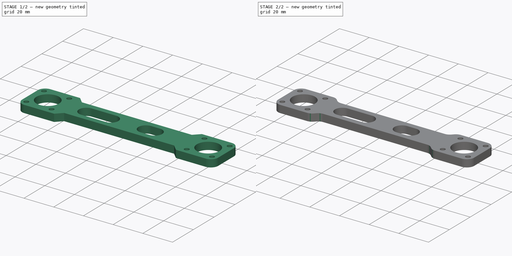
[diagram: build sequence overview — one tinted view per stage of 2, left to right]
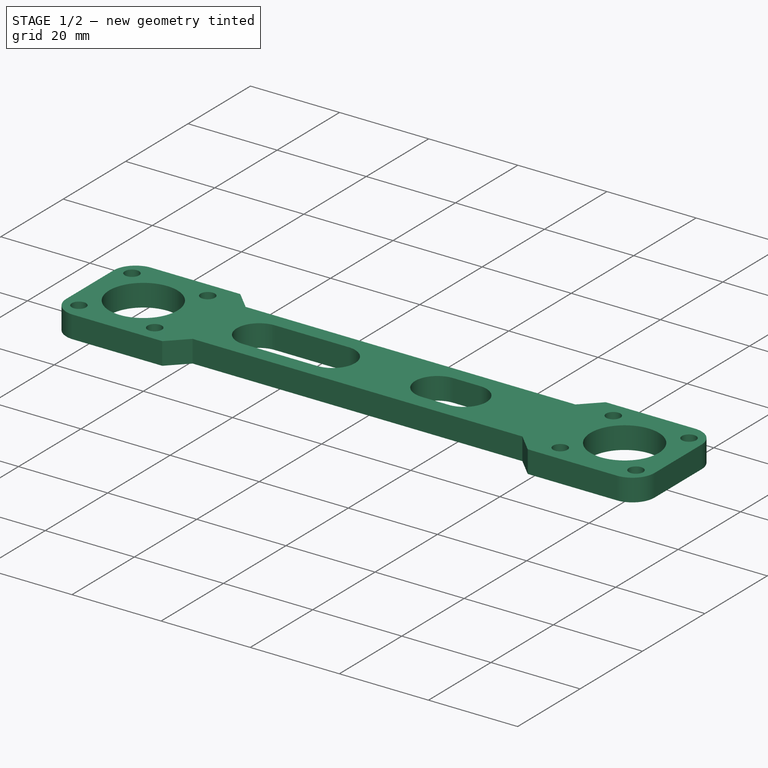
[diagram: stage 1 of 2 — iso view after this stage's code; geometry added in this stage tinted green]
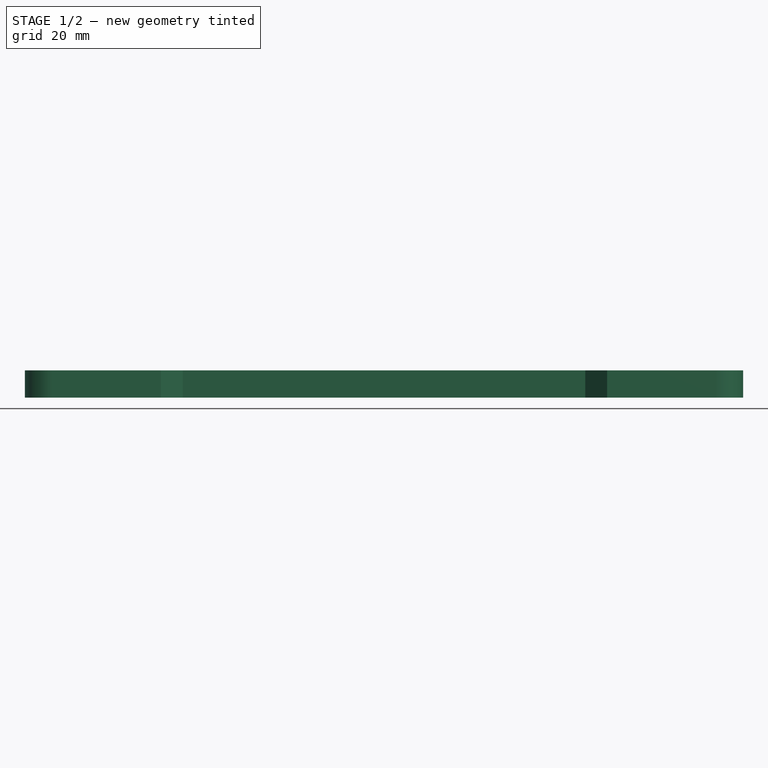
[diagram: stage 1 of 2 — front view after this stage's code; geometry added in this stage tinted green]
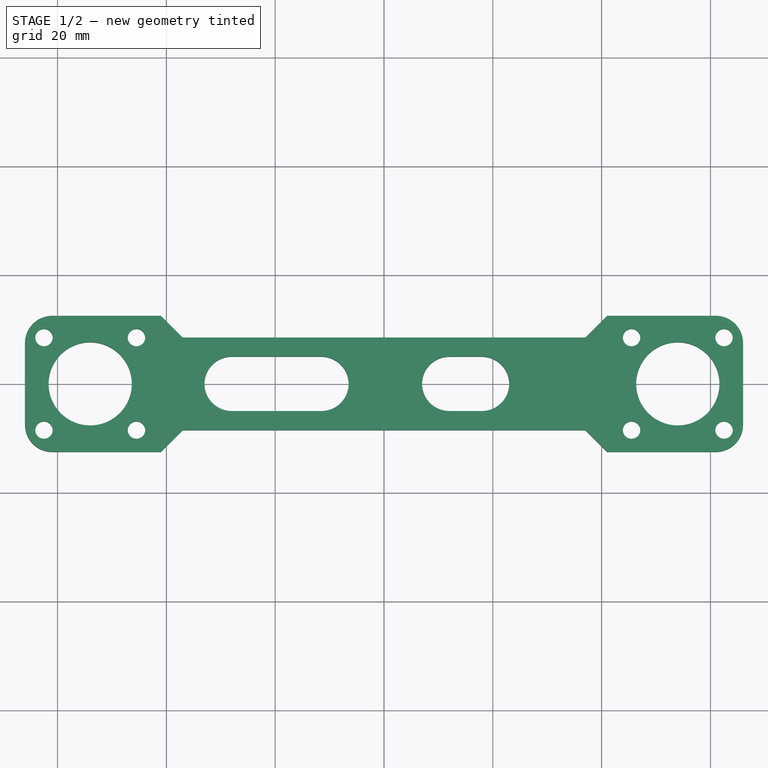
[diagram: stage 1 of 2 — top view after this stage's code; geometry added in this stage tinted green]
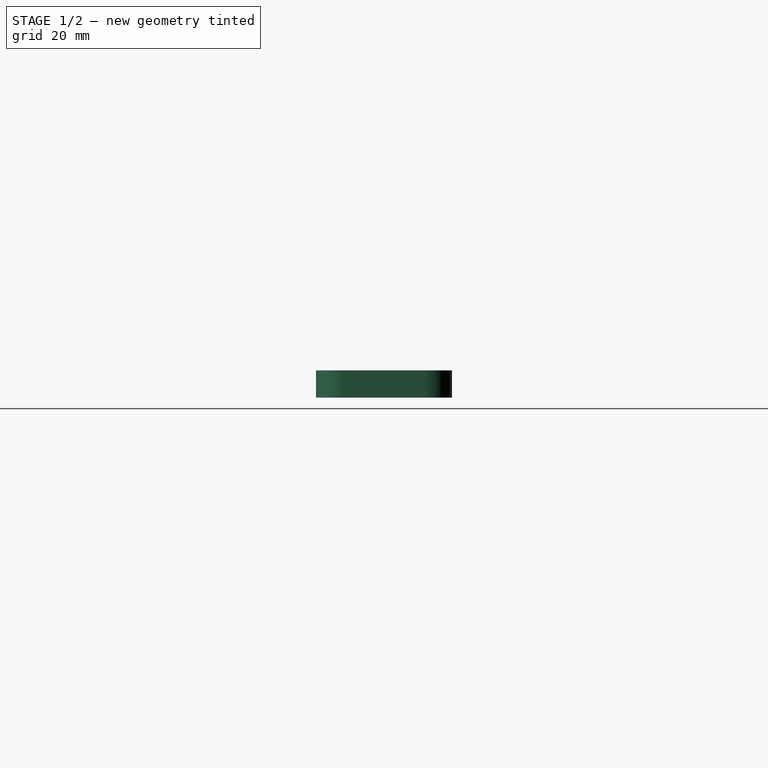
[diagram: stage 1 of 2 — right view after this stage's code; geometry added in this stage tinted green]
FCSTD DOCUMENT  (FreeCAD 0.19R24276 (Git))
Label: Guillotine_part_2_middle
License: All rights reserved
LicenseURL: http://en.wikipedia.org/wiki/All_rights_reserved
objects: PartDesign::Fillet×3, Sketcher::SketchObject×1, PartDesign::Pad×1, PartDesign::Body×1
note: 10 computed .brp shape members not serialized (recipe doc carries the construction recipe); baked Part::Feature solids carry a one-line shape summary decoded from their .brp

FEATURE [Sketcher::SketchObject] Sketch
  FullyConstrained = false
  MapMode = 5
  Support = -> [XY_Plane]
  sketch-geometry (67):
    g0: Circle CenterX=-54 CenterY=0 CenterZ=0 NormalX=0 NormalY=0 NormalZ=1 AngleXU=0 Radius=7.65
    g1: Circle CenterX=54 CenterY=0 CenterZ=0 NormalX=0 NormalY=0 NormalZ=1 AngleXU=0 Radius=7.65
    g2: LineSegment StartX=62.5 StartY=8.5 StartZ=0 EndX=45.5 EndY=8.5 EndZ=0
    g3: LineSegment StartX=45.5 StartY=8.5 StartZ=0 EndX=45.5 EndY=-8.5 EndZ=0
    g4: LineSegment StartX=45.5 StartY=-8.5 StartZ=0 EndX=62.5 EndY=-8.5 EndZ=0
    g5: LineSegment StartX=62.5 StartY=-8.5 StartZ=0 EndX=62.5 EndY=8.5 EndZ=0
    g6: Circle CenterX=54 CenterY=0 CenterZ=0 NormalX=0 NormalY=0 NormalZ=1 AngleXU=0 Radius=12.0208
    g7: Circle CenterX=45.5 CenterY=8.5 CenterZ=0 NormalX=0 NormalY=0 NormalZ=1 AngleXU=0 Radius=1.6
    g8: Circle CenterX=62.5 CenterY=8.5 CenterZ=0 NormalX=0 NormalY=0 NormalZ=1 AngleXU=0 Radius=1.6
    g9: Circle CenterX=62.5 CenterY=-8.5 CenterZ=0 NormalX=0 NormalY=0 NormalZ=1 AngleXU=0 Radius=1.6
    g10: Circle CenterX=45.5 CenterY=-8.5 CenterZ=0 NormalX=0 NormalY=0 NormalZ=1 AngleXU=0 Radius=1.6
    g11: Circle CenterX=-54 CenterY=0 CenterZ=0 NormalX=0 NormalY=0 NormalZ=1 AngleXU=0 Radius=7.65
    g12: LineSegment StartX=-62.5 StartY=8.5 StartZ=0 EndX=-45.5 EndY=8.5 EndZ=0
    g13: LineSegment StartX=-45.5 StartY=8.5 StartZ=0 EndX=-45.5 EndY=-8.5 EndZ=0
    g14: LineSegment StartX=-45.5 StartY=-8.5 StartZ=0 EndX=-62.5 EndY=-8.5 EndZ=0
    g15: LineSegment StartX=-62.5 StartY=-8.5 StartZ=0 EndX=-62.5 EndY=8.5 EndZ=0
    g16: Circle CenterX=-54 CenterY=0 CenterZ=0 NormalX=0 NormalY=0 NormalZ=1 AngleXU=0 Radius=12.0208
    g17: Circle CenterX=-45.5 CenterY=8.5 CenterZ=0 NormalX=0 NormalY=0 NormalZ=1 AngleXU=0 Radius=1.6
    g18: Circle CenterX=-62.5 CenterY=8.5 CenterZ=0 NormalX=0 NormalY=0 NormalZ=1 AngleXU=0 Radius=1.6
    g19: Circle CenterX=-62.5 CenterY=-8.5 CenterZ=0 NormalX=0 NormalY=0 NormalZ=1 AngleXU=0 Radius=1.6
    g20: Circle CenterX=-45.5 CenterY=-8.5 CenterZ=0 NormalX=0 NormalY=0 NormalZ=1 AngleXU=0 Radius=1.6
    g21: LineSegment StartX=-66 StartY=12.5 StartZ=0 EndX=66 EndY=12.5 EndZ=0
    g22: LineSegment StartX=66 StartY=12.5 StartZ=0 EndX=66 EndY=-12.5 EndZ=0
    g23: LineSegment StartX=66 StartY=-12.5 StartZ=0 EndX=-66 EndY=-12.5 EndZ=0
    g24: LineSegment StartX=-66 StartY=-12.5 StartZ=0 EndX=-66 EndY=12.5 EndZ=0
    g25: LineSegment StartX=-25 StartY=0 StartZ=0 EndX=-25 EndY=-12.5 EndZ=0
    g26: LineSegment StartX=15 StartY=0 StartZ=0 EndX=15 EndY=-12.5 EndZ=0
    g27: ArcOfCircle CenterX=-28 CenterY=0 CenterZ=0 NormalX=0 NormalY=0 NormalZ=1 AngleXU=0 Radius=5 StartAngle=1.5708 EndAngle=4.71239
    g28: ArcOfCircle CenterX=18 CenterY=0 CenterZ=0 NormalX=0 NormalY=0 NormalZ=1 AngleXU=0 Radius=5 StartAngle=4.71239 EndAngle=7.85398
    g29: LineSegment StartX=-28 StartY=-5 StartZ=0 EndX=18 EndY=-5 EndZ=0
    g30: LineSegment StartX=-28 StartY=5 StartZ=0 EndX=18 EndY=5 EndZ=0
    g31: LineSegment StartX=41.5 StartY=27.514 StartZ=0 EndX=41.5 EndY=-12.5 EndZ=0
    g32: Circle CenterX=0 CenterY=44 CenterZ=0 NormalX=0 NormalY=0 NormalZ=1 AngleXU=0 Radius=41.5
    g33: Circle CenterX=0 CenterY=-44 CenterZ=0 NormalX=0 NormalY=0 NormalZ=1 AngleXU=0 Radius=41.5
    g34: LineSegment StartX=-37 StartY=8.5 StartZ=0 EndX=37 EndY=8.5 EndZ=0
    g35: LineSegment StartX=37 StartY=8.5 StartZ=0 EndX=37 EndY=-8.5 EndZ=0
    g36: LineSegment StartX=37 StartY=-8.5 StartZ=0 EndX=-37 EndY=-8.5 EndZ=0
    g37: LineSegment StartX=-37 StartY=-8.5 StartZ=0 EndX=-37 EndY=8.5 EndZ=0
    g38: LineSegment StartX=-37 StartY=8.5 StartZ=0 EndX=-41 EndY=12.5 EndZ=0
    g39: LineSegment StartX=-37 StartY=-8.5 StartZ=0 EndX=-41 EndY=-12.5 EndZ=0
    g40: LineSegment StartX=37 StartY=-8.5 StartZ=0 EndX=41 EndY=-12.5 EndZ=0
    g41: LineSegment StartX=37 StartY=8.5 StartZ=0 EndX=41 EndY=12.5 EndZ=0
    g42: LineSegment StartX=41 StartY=12.5 StartZ=0 EndX=66 EndY=12.5 EndZ=0
    g43: LineSegment StartX=41 StartY=-12.5 StartZ=0 EndX=66 EndY=-12.5 EndZ=0
    g44: LineSegment StartX=-66 StartY=-12.5 StartZ=0 EndX=-41 EndY=-12.5 EndZ=0
    g45: LineSegment StartX=-66 StartY=12.5 StartZ=0 EndX=-41 EndY=12.5 EndZ=0
    g46: LineSegment StartX=0 StartY=0 StartZ=0 EndX=15 EndY=0 EndZ=0
    g47: LineSegment StartX=0 StartY=0 StartZ=0 EndX=-25 EndY=0 EndZ=0
    g48: Circle CenterX=-14.5 CenterY=0 CenterZ=0 NormalX=0 NormalY=0 NormalZ=1 AngleXU=0 Radius=1.5
    g49: Circle CenterX=-18.5 CenterY=0 CenterZ=0 NormalX=0 NormalY=0 NormalZ=1 AngleXU=0 Radius=1.5
    g50: ArcOfCircle CenterX=-28 CenterY=0 CenterZ=0 NormalX=0 NormalY=0 NormalZ=1 AngleXU=0 Radius=5 StartAngle=1.5708 EndAngle=4.71239
    g51: ArcOfCircle CenterX=-11.5 CenterY=1e-16 CenterZ=0 NormalX=0 NormalY=0 NormalZ=1 AngleXU=0 Radius=5 StartAngle=4.71239 EndAngle=7.85398
    g52: LineSegment StartX=-28 StartY=-5 StartZ=0 EndX=-11.5 EndY=-5 EndZ=0
    g53: LineSegment StartX=-28 StartY=5 StartZ=0 EndX=-11.5 EndY=5 EndZ=0
    g54: ArcOfCircle CenterX=18 CenterY=0 CenterZ=0 NormalX=0 NormalY=0 NormalZ=1 AngleXU=0 Radius=5 StartAngle=4.71239 EndAngle=7.85398
    g55: ArcOfCircle CenterX=12 CenterY=-2e-16 CenterZ=0 NormalX=0 NormalY=0 NormalZ=1 AngleXU=0 Radius=5 StartAngle=1.5708 EndAngle=4.71239
    g56: LineSegment StartX=18 StartY=5 StartZ=0 EndX=12 EndY=5 EndZ=0
    g57: LineSegment StartX=18 StartY=-5 StartZ=0 EndX=12 EndY=-5 EndZ=0
    g58: LineSegment StartX=-28 StartY=5 StartZ=0 EndX=-11.5 EndY=5 EndZ=0
    g59: LineSegment StartX=18 StartY=5 StartZ=0 EndX=12 EndY=5 EndZ=0
    g60: LineSegment StartX=18 StartY=-5 StartZ=0 EndX=12 EndY=-5 EndZ=0
    g61: LineSegment StartX=-11.5 StartY=-5 StartZ=0 EndX=-28 EndY=-5 EndZ=0
    g62: LineSegment StartX=33.4931 StartY=-15.3105 StartZ=0 EndX=49.4931 EndY=-15.3105 EndZ=0
    g63: LineSegment StartX=41.4931 StartY=-28.6244 StartZ=0 EndX=41.4931 EndY=-15.3105 EndZ=0
    g64: Circle CenterX=54 CenterY=0 CenterZ=0 NormalX=0 NormalY=0 NormalZ=1 AngleXU=0 Radius=4
    g65: Circle CenterX=45.5 CenterY=-8.5 CenterZ=0 NormalX=0 NormalY=0 NormalZ=1 AngleXU=0 Radius=3
    g66: Circle CenterX=62.5 CenterY=-8.5 CenterZ=0 NormalX=0 NormalY=0 NormalZ=1 AngleXU=0 Radius=3
  constraints (165):
    c: PointOnObject(g0,g-1)
    c: Symmetric(g0,g1,g-1)
    c: DistanceX(g0,g1) = 108
    c: Diameter(g1) = 15.3
    c: Equal(g0,g1)
    c: Coincident(g2,g3)
    c: Coincident(g3,g4)
    c: Coincident(g4,g5)
    c: Coincident(g5,g2)
    c: Equal(g2,g3)
    c: Equal(g2,g4)
    c: Equal(g2,g5)
    c: PointOnObject(g2,g6)
    c: PointOnObject(g3,g6)
    c: PointOnObject(g4,g6)
    c: PointOnObject(g5,g6)
    c: Coincident(g6,g1)
    c: Horizontal(g2)
    c: DistanceX(g2,g2) = 17
    c: Coincident(g7,g2)
    c: Coincident(g9,g4)
    c: Coincident(g10,g3)
    c: Equal(g10,g7)
    c: Equal(g7,g8)
    c: Equal(g8,g9)
    c: Diameter(g9) = 3.2
    c: Coincident(g8,g2)
    c: Diameter(g11) = 15.3
    c: Coincident(g12,g13)
    c: Coincident(g13,g14)
    c: Coincident(g14,g15)
    c: Coincident(g15,g12)
    c: Equal(g12,g13)
    c: Equal(g12,g14)
    c: Equal(g12,g15)
    c: PointOnObject(g12,g16)
    c: PointOnObject(g13,g16)
    c: PointOnObject(g14,g16)
    c: PointOnObject(g15,g16)
    c: Coincident(g16,g11)
    c: Horizontal(g12)
    c: Coincident(g17,g12)
    c: Coincident(g19,g14)
    c: Coincident(g20,g13)
    c: Equal(g20,g17)
    c: Equal(g17,g18)
    c: Equal(g18,g19)
    c: Diameter(g19) = 3.2
    c: Coincident(g18,g12)
    c: Coincident(g0,g11)
    c: Equal(g2,g12)
    c: Coincident(g21,g22)
    c: Coincident(g22,g23)
    c: Coincident(g23,g24)
    c: Coincident(g24,g21)
    c: Horizontal(g21)
    c: Horizontal(g23)
    c: Vertical(g22)
    c: Vertical(g24)
    c: Symmetric(g21,g22,g-1)
    c: DistanceX(g21,g21) = 132
    c: DistanceY(g24,g24) = 25
    c: Vertical(g25)
    c: Vertical(g26)
    c: PointOnObject(g26,g23)
    c: PointOnObject(g25,g23)
    c: DistanceX(g-1,g26) = 15
    c: DistanceX(g25,g-1) = 25
    c: Tangent(g27,g30) = 1.5708
    c: Tangent(g27,g29) = -1.5708
    c: Tangent(g29,g28) = -1.5708
    c: Tangent(g30,g28) = 1.5708
    c: Horizontal(g29)
    c: Equal(g27,g28)
    c: Horizontal(g-1,g28)
    c: DistanceX(g26,g28) = 3
    c: DistanceX(g27,g25) = 3
    c: Diameter(g28) = 10
    c: Vertical(g31)
    c: PointOnObject(g31,g23)
    c: DistanceX(g-1,g31) = 41.5
    c: PointOnObject(g32,g-2)
    c: DistanceY(g33,g32) = 88
    c: Symmetric(g32,g33,g-1)
    c: Diameter(g32) = 83
    c: Equal(g32,g33)
    c: Coincident(g34,g35)
    c: Coincident(g35,g36)
    c: Coincident(g36,g37)
    c: Coincident(g37,g34)
    c: Horizontal(g34)
    c: Horizontal(g36)
    c: Vertical(g35)
    c: Vertical(g37)
    c: Symmetric(g34,g35,g-1)
    c: DistanceY(g35,g35) = 17
    c: DistanceX(g36,g36) = 74
    c: Coincident(g38,g34)
    c: Angle(g34,g38) = 2.35619
    c: PointOnObject(g38,g21)
    c: Angle(g39,g36) = 2.35619
    c: Coincident(g39,g36)
    c: PointOnObject(g39,g23)
    c: Parallel(g39,g41)
    c: Coincident(g41,g34)
    c: Parallel(g38,g40)
    c: Coincident(g40,g35)
    c: PointOnObject(g40,g23)
    c: PointOnObject(g41,g21)
    c: Coincident(g42,g41)
    c: Coincident(g42,g22)
    c: Coincident(g43,g40)
    c: Coincident(g43,g22)
    c: Coincident(g44,g24)
    c: Coincident(g45,g24)
    c: Coincident(g45,g38)
    c: Coincident(g44,g39)
    c: Coincident(g46,g-1)
    c: Horizontal(g46)
    c: Coincident(g46,g26)
    c: Coincident(g47,g-1)
    c: Horizontal(g47)
    c: Coincident(g25,g47)
    c: PointOnObject(g48,g46)
    c: PointOnObject(g49,g46)
    c: DistanceX(g49,g48) = 4
    c: Diameter(g48) = 3
    c: Equal(g48,g49)
    c: DistanceX(g25,g49) = 6.5
    c: Tangent(g50,g53) = 1.5708
    c: Tangent(g50,g52) = -1.5708
    c: Tangent(g52,g51) = -1.5708
    c: Tangent(g53,g51) = 1.5708
    c: Horizontal(g52)
    c: Equal(g50,g51)
    c: Coincident(g50,g27)
    c: Tangent(g51,g29)
    c: DistanceX(g48,g51) = 3
    c: Tangent(g54,g57) = 1.5708
    c: Tangent(g54,g56) = -1.5708
    c: Tangent(g56,g55) = -1.5708
    c: Tangent(g57,g55) = 1.5708
    c: Horizontal(g56)
    c: Equal(g54,g55)
    c: Coincident(g54,g28)
    c: Tangent(g55,g30)
    c: DistanceX(g55,g26) = 3
    c: Coincident(g58,g27)
    c: Coincident(g59,g28)
    c: Coincident(g58,g51)
    c: Coincident(g59,g55)
    c: Coincident(g60,g28)
    c: Coincident(g61,g51)
    c: Coincident(g61,g27)
    c: Coincident(g60,g55)
    c: Horizontal(g62)
    c: DistanceX(g62,g62) = 16
    c: Vertical(g63)
    c: Symmetric(g62,g62,g63)
    c: Coincident(g64,g1)
    c: Diameter(g64) = 8
    c: Coincident(g65,g10)
    c: Coincident(g66,g9)
    c: Diameter(g65) = 6
    c: Equal(g65,g66)
FEATURE [PartDesign::Pad] Pad
  Direction = (1,1,1)
  Length = 5
  Length2 = 100
  Profile = -> Sketch
  Type = 0
FEATURE [PartDesign::Fillet] Fillet
  Base = -> Pad [Edge11,Edge8,Edge26,Edge29]
  BaseFeature = -> Pad
  Radius = 5
  SupportTransform = false
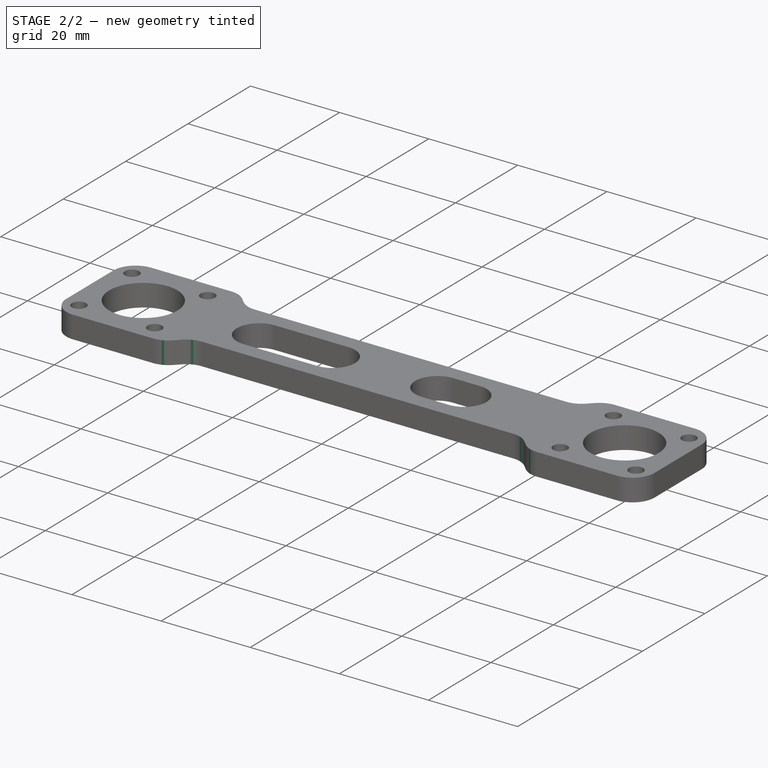
[diagram: stage 2 of 2 — iso view after this stage's code; geometry added in this stage tinted green]
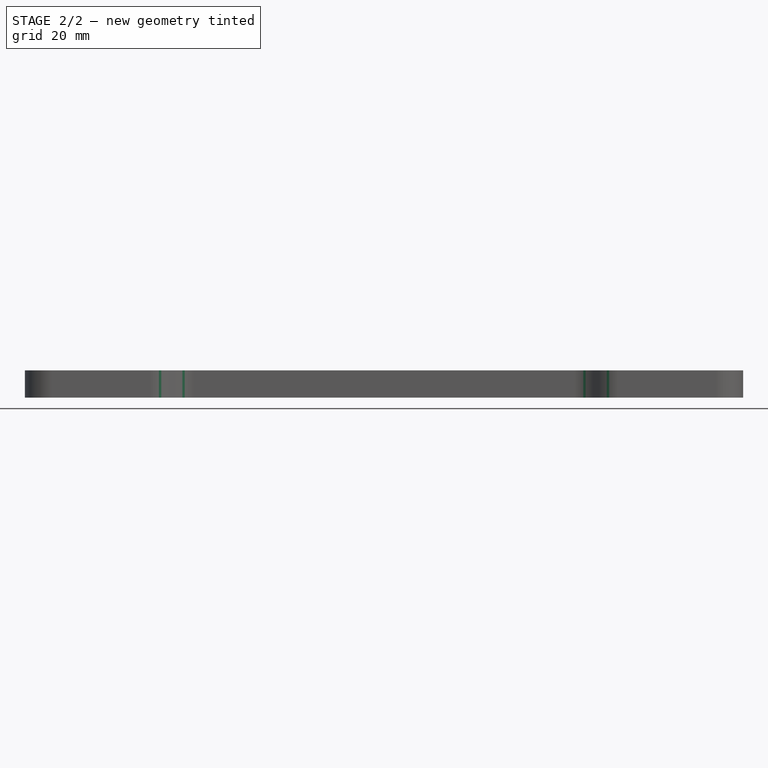
[diagram: stage 2 of 2 — front view after this stage's code; geometry added in this stage tinted green]
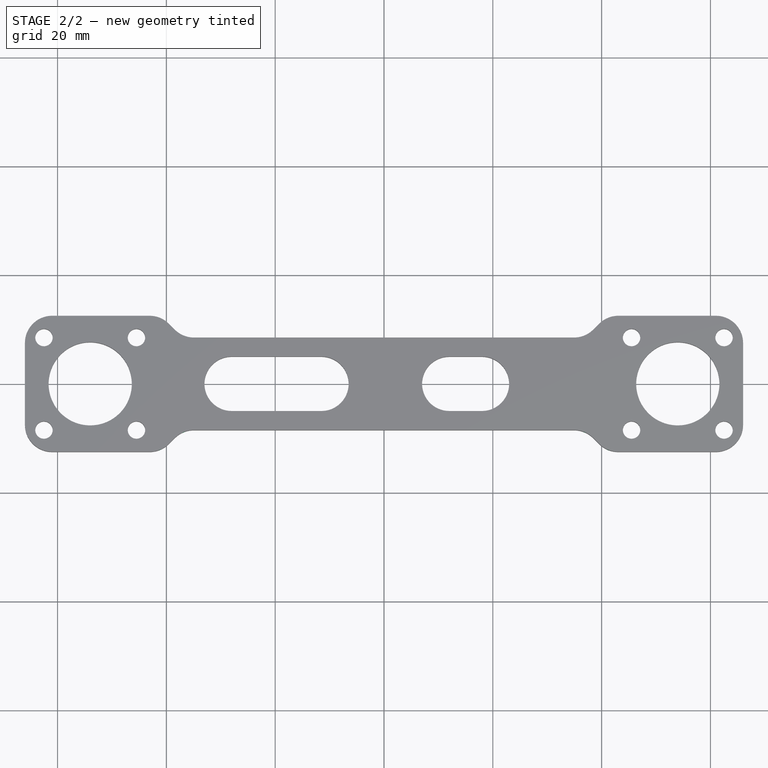
[diagram: stage 2 of 2 — top view after this stage's code; geometry added in this stage tinted green]
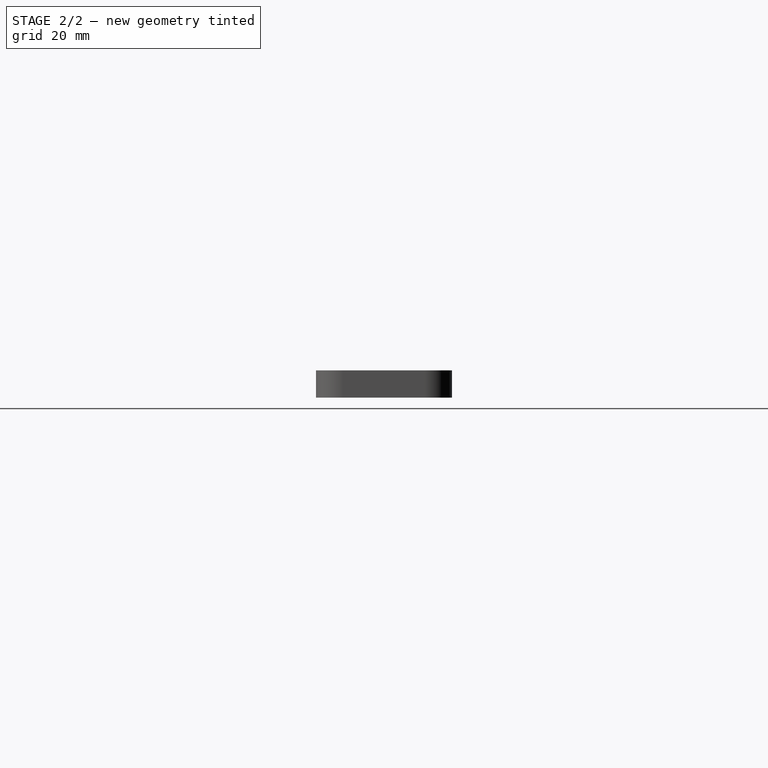
[diagram: stage 2 of 2 — right view after this stage's code; geometry added in this stage tinted green]
FEATURE [PartDesign::Fillet] Fillet001
  Base = -> Fillet [Edge83,Edge81,Edge79,Edge77]
  BaseFeature = -> Fillet
  Radius = 5
  SupportTransform = false
FEATURE [PartDesign::Fillet] Fillet002
  Base = -> Fillet001 [Edge56,Edge60,Edge68,Edge64]
  BaseFeature = -> Fillet001
  Radius = 5
  SupportTransform = false
FEATURE [PartDesign::Body] Body
  Group = -> [Sketch,Pad,Fillet,Fillet001,Fillet002]
  Origin = -> Origin
  Tip = -> Fillet002
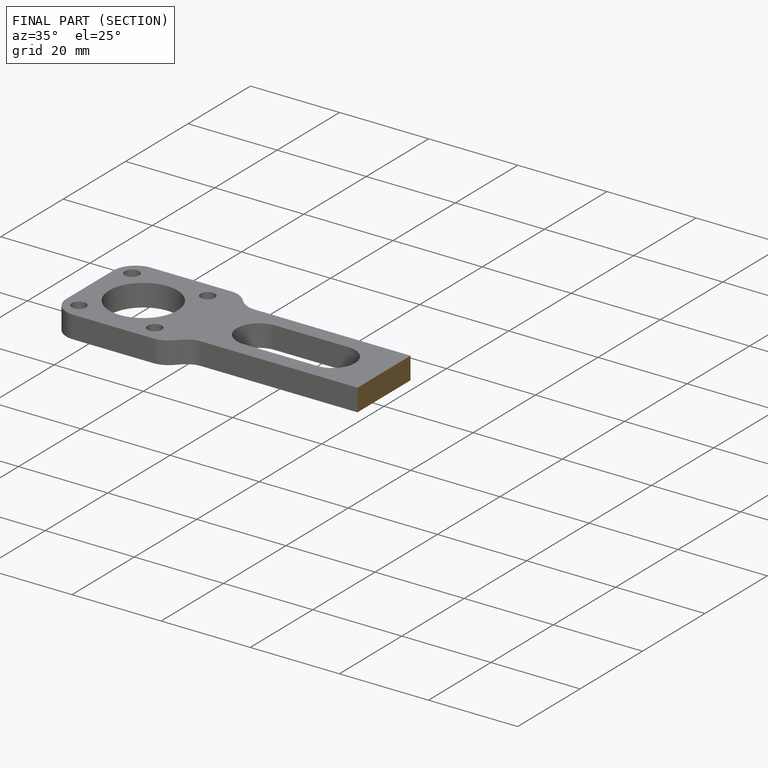
[diagram: finished part — half-section view (interior)]
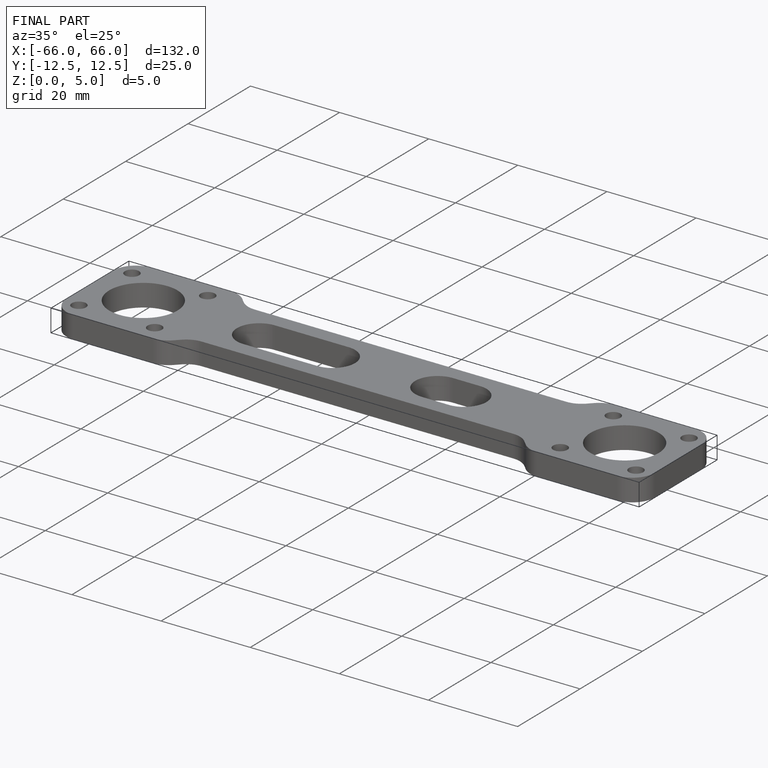
[diagram: finished part — iso view with bounding-box wireframe]
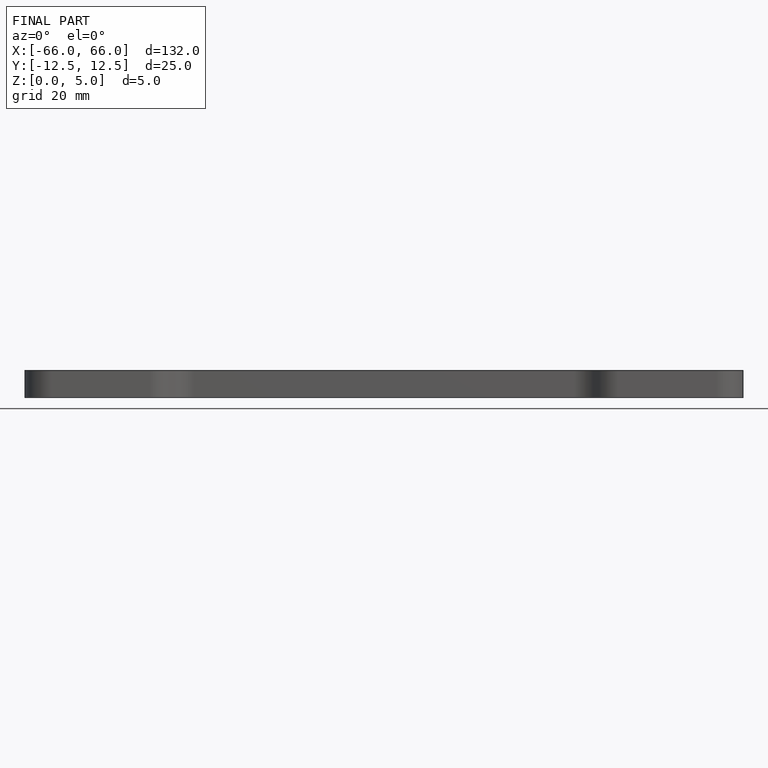
[diagram: finished part — front view with bounding-box wireframe]
